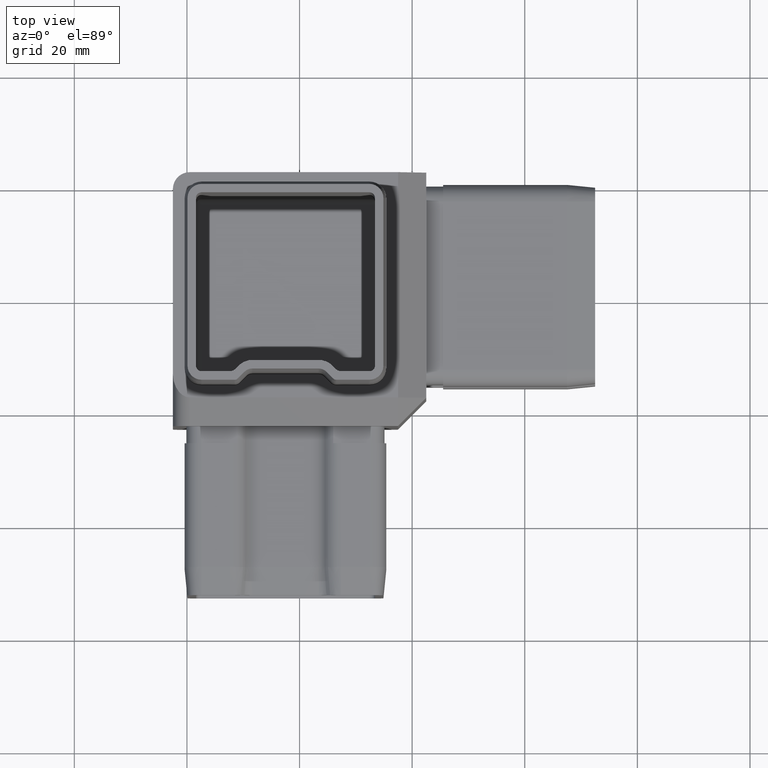
[diagram: clean part render]
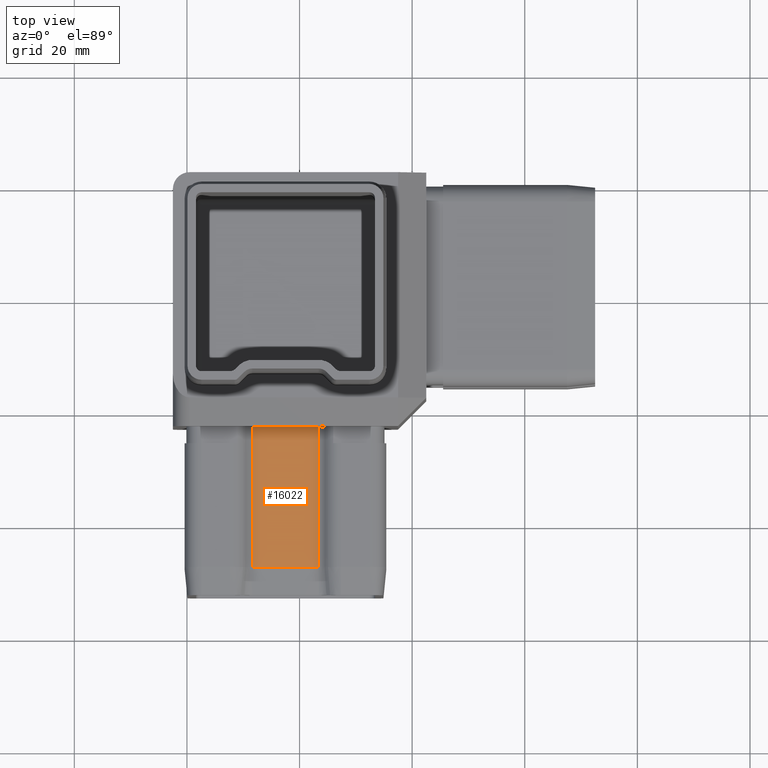
[diagram: same view with one face highlighted and labeled with its STEP entity id]
A machine part, top view. The second image highlights one B-rep face of the part: STEP entity #16022.
In plain terms, the highlighted planar face has unit normal (0, 0, -1).
Its self-contained STEP definition (entity closure, byte-faithful):
#70 = CARTESIAN_POINT ( 'NONE',  ( 3.378679656440366500, -22.50000000000000400, 13.40000000000000200 ) ) ;
#128 = VERTEX_POINT ( 'NONE', #70 ) ;
#322 = LINE ( 'NONE', #14556, #3027 ) ;
#1252 = ORIENTED_EDGE ( 'NONE', *, *, #2628, .T. ) ;
#2324 = CARTESIAN_POINT ( 'NONE',  ( 3.378679656440366500, -52.50000000000000700, 13.40000000000000200 ) ) ;
#2438 = DIRECTION ( 'NONE',  ( -0.0000000000000000000, 1.000000000000000000, -0.0000000000000000000 ) ) ;
#2628 = EDGE_CURVE ( 'NONE', #7326, #5658, #11884, .T. ) ;
#2686 = VERTEX_POINT ( 'NONE', #13710 ) ;
#2737 = CARTESIAN_POINT ( 'NONE',  ( -8.378679656440343800, -47.50000000000000700, 13.40000000000000200 ) ) ;
#3023 = LINE ( 'NONE', #13183, #10909 ) ;
#3027 = VECTOR ( 'NONE', #10527, 1000.000000000000000 ) ;
#4332 = ORIENTED_EDGE ( 'NONE', *, *, #15328, .F. ) ;
#4337 = EDGE_CURVE ( 'NONE', #128, #2686, #3023, .T. ) ;
#5103 = LINE ( 'NONE', #15448, #15264 ) ;
#5658 = VERTEX_POINT ( 'NONE', #9343 ) ;
#6763 = DIRECTION ( 'NONE',  ( 1.000000000000000000, 0.0000000000000000000, 4.426308909543164900E-016 ) ) ;
#7326 = VERTEX_POINT ( 'NONE', #8912 ) ;
#7371 = FACE_OUTER_BOUND ( 'NONE', #16677, .T. ) ;
#7674 = DIRECTION ( 'NONE',  ( 2.950872606362109700E-016, 0.0000000000000000000, -1.000000000000000000 ) ) ;
#7931 = VECTOR ( 'NONE', #6763, 1000.000000000000000 ) ;
#8912 = CARTESIAN_POINT ( 'NONE',  ( -8.378679656440343800, -47.50000000000000700, 13.40000000000000200 ) ) ;
#9343 = CARTESIAN_POINT ( 'NONE',  ( 3.378679656440373200, -47.50000000000000700, 13.40000000000000700 ) ) ;
#10527 = DIRECTION ( 'NONE',  ( -0.0000000000000000000, 1.000000000000000000, -0.0000000000000000000 ) ) ;
#10546 = DIRECTION ( 'NONE',  ( -1.000000000000000000, 0.0000000000000000000, -2.950872606362109700E-016 ) ) ;
#10909 = VECTOR ( 'NONE', #10546, 1000.000000000000000 ) ;
#11884 = LINE ( 'NONE', #2737, #7931 ) ;
#12830 = AXIS2_PLACEMENT_3D ( 'NONE', #2324, #7674, #14256 ) ;
#13183 = CARTESIAN_POINT ( 'NONE',  ( 3.378679656440366500, -22.50000000000000400, 13.40000000000000200 ) ) ;
#13710 = CARTESIAN_POINT ( 'NONE',  ( -8.378679656440349200, -22.50000000000000400, 13.40000000000000200 ) ) ;
#14256 = DIRECTION ( 'NONE',  ( -1.000000000000000000, 0.0000000000000000000, -2.950872606362109700E-016 ) ) ;
#14423 = ORIENTED_EDGE ( 'NONE', *, *, #4337, .T. ) ;
#14556 = CARTESIAN_POINT ( 'NONE',  ( -8.378679656440349200, -52.50000000000000700, 13.39999999999999900 ) ) ;
#15264 = VECTOR ( 'NONE', #2438, 1000.000000000000000 ) ;
#15328 = EDGE_CURVE ( 'NONE', #7326, #2686, #322, .T. ) ;
#15363 = ORIENTED_EDGE ( 'NONE', *, *, #16080, .T. ) ;
#15448 = CARTESIAN_POINT ( 'NONE',  ( 3.378679656440366500, -52.50000000000000700, 13.40000000000000400 ) ) ;
#15571 = PLANE ( 'NONE',  #12830 ) ;
#16022 = ADVANCED_FACE ( 'NONE', ( #7371 ), #15571, .F. ) ;
#16080 = EDGE_CURVE ( 'NONE', #5658, #128, #5103, .T. ) ;
#16677 = EDGE_LOOP ( 'NONE', ( #1252, #15363, #14423, #4332 ) ) ;